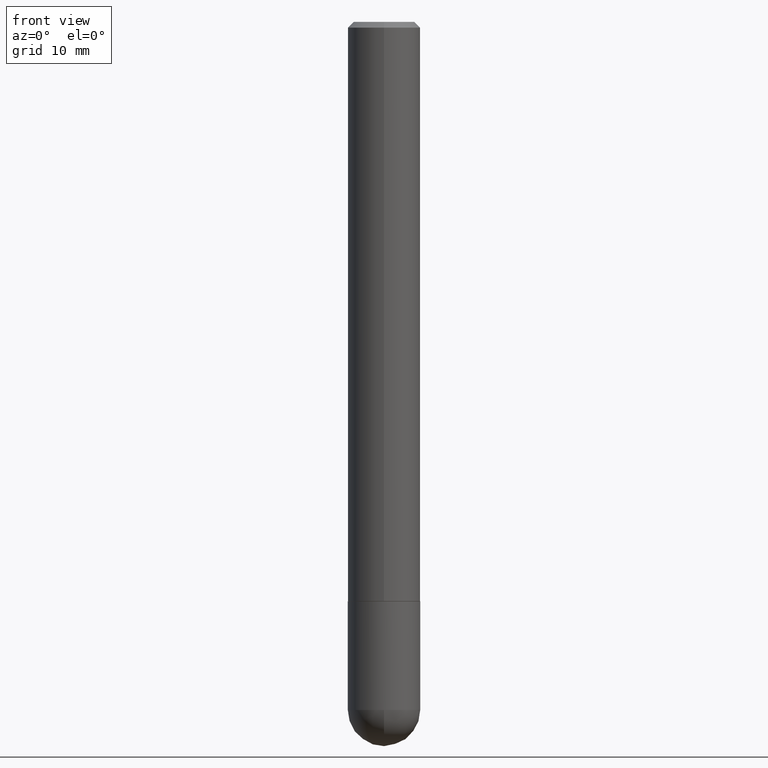
[diagram: clean part render]
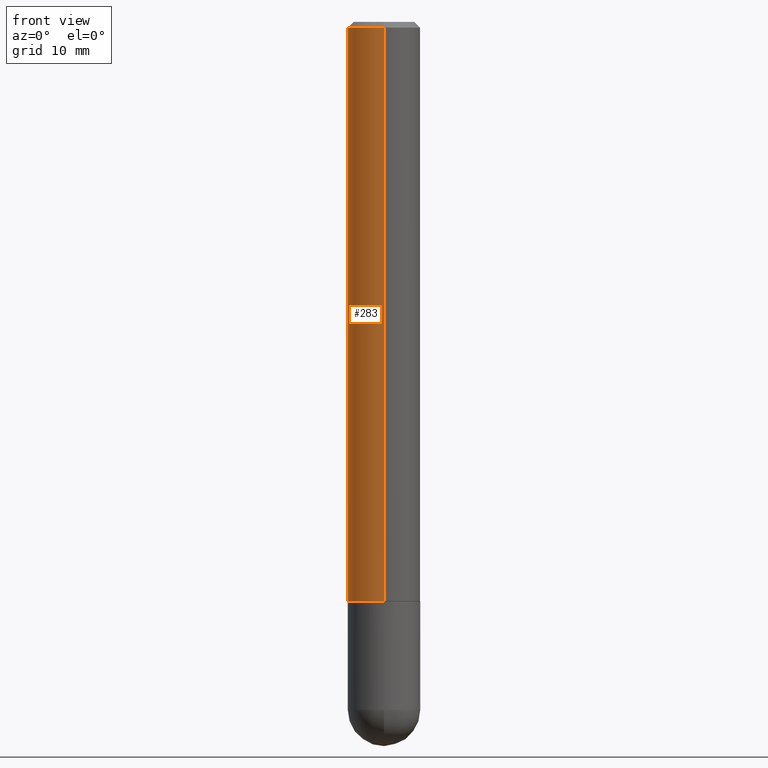
[diagram: same view with one face highlighted and labeled with its STEP entity id]
A machine part, front view. The second image highlights one B-rep face of the part: STEP entity #283.
In plain terms, the highlighted cylindrical surface (edge-blend (fillet) strip) has radius 3.175 mm, axis along (-0, 0, 1).
Its self-contained STEP definition (entity closure, byte-faithful):
#6 = CARTESIAN_POINT ( 'NONE',  ( 4.891806665152773460E-29, -6.974724612781594373E-15, -1.998999999999999666 ) ) ;
#10 = ORIENTED_EDGE ( 'NONE', *, *, #67, .T. ) ;
#11 = DIRECTION ( 'NONE',  ( -6.982962677686265922E-15, -1.000000000000000000, 3.489106859820707875E-15 ) ) ;
#12 = CIRCLE ( 'NONE', #96, 0.1250000000000000278 ) ;
#14 = FACE_OUTER_BOUND ( 'NONE', #263, .T. ) ;
#16 = CARTESIAN_POINT ( 'NONE',  ( 4.894253792048817813E-31, -6.978213719641443063E-17, -0.02000000000000007674 ) ) ;
#20 = DIRECTION ( 'NONE',  ( -2.447126896024399518E-29, 3.489106859820708269E-15, 1.000000000000000000 ) ) ;
#34 = CARTESIAN_POINT ( 'NONE',  ( -8.728703347107842263E-16, -0.1250000000000001388, 4.361383574775889774E-16 ) ) ;
#38 = VERTEX_POINT ( 'NONE', #163 ) ;
#39 = DIRECTION ( 'NONE',  ( -6.982962677686265133E-15, -1.000000000000000000, 4.370956789862812472E-15 ) ) ;
#44 = AXIS2_PLACEMENT_3D ( 'NONE', #108, #69, #11 ) ;
#50 = CARTESIAN_POINT ( 'NONE',  ( 8.881784197001260212E-16, 0.1250000000000001388, -4.361383574775889774E-16 ) ) ;
#67 = EDGE_CURVE ( 'NONE', #38, #290, #220, .T. ) ;
#69 = DIRECTION ( 'NONE',  ( -2.447126896024399518E-29, 3.489106859820708269E-15, 1.000000000000000000 ) ) ;
#77 = DIRECTION ( 'NONE',  ( -2.447126896024399518E-29, 3.489106859820708269E-15, 1.000000000000000000 ) ) ;
#96 = AXIS2_PLACEMENT_3D ( 'NONE', #16, #77, #376 ) ;
#108 = CARTESIAN_POINT ( 'NONE',  ( 0.000000000000000000, 0.000000000000000000, 0.000000000000000000 ) ) ;
#121 = EDGE_CURVE ( 'NONE', #330, #319, #180, .T. ) ;
#129 = ORIENTED_EDGE ( 'NONE', *, *, #383, .F. ) ;
#160 = DIRECTION ( 'NONE',  ( -2.447126896024399518E-29, 3.489106859820708269E-15, 1.000000000000000000 ) ) ;
#163 = CARTESIAN_POINT ( 'NONE',  ( -8.728703347107360072E-16, -0.1250000000000072164, -1.998999999999999000 ) ) ;
#180 = LINE ( 'NONE', #50, #249 ) ;
#220 = LINE ( 'NONE', #34, #399 ) ;
#249 = VECTOR ( 'NONE', #20, 39.37007874015748143 ) ;
#252 = ORIENTED_EDGE ( 'NONE', *, *, #121, .F. ) ;
#263 = EDGE_LOOP ( 'NONE', ( #252, #281, #10, #129 ) ) ;
#269 = DIRECTION ( 'NONE',  ( -2.447126896024399518E-29, 3.489106859820708269E-15, 1.000000000000000000 ) ) ;
#281 = ORIENTED_EDGE ( 'NONE', *, *, #305, .T. ) ;
#283 = ADVANCED_FACE ( 'NONE', ( #14 ), #359, .T. ) ;
#290 = VERTEX_POINT ( 'NONE', #292 ) ;
#292 = CARTESIAN_POINT ( 'NONE',  ( -8.575622497214411495E-16, -0.1250000000000001110, -0.01999999999999964306 ) ) ;
#294 = CARTESIAN_POINT ( 'NONE',  ( 8.881784197001510675E-16, 0.1249999999999932693, -1.999000000000000110 ) ) ;
#305 = EDGE_CURVE ( 'NONE', #330, #38, #308, .T. ) ;
#308 = CIRCLE ( 'NONE', #391, 0.1250000000000002498 ) ;
#319 = VERTEX_POINT ( 'NONE', #362 ) ;
#330 = VERTEX_POINT ( 'NONE', #294 ) ;
#359 = CYLINDRICAL_SURFACE ( 'NONE', #44, 0.1250000000000001388 ) ;
#362 = CARTESIAN_POINT ( 'NONE',  ( 8.728703347107839305E-16, 0.1249999999999999584, -0.02000000000000051389 ) ) ;
#376 = DIRECTION ( 'NONE',  ( -6.982962677686265922E-15, -1.000000000000000000, 3.483106191921934765E-15 ) ) ;
#383 = EDGE_CURVE ( 'NONE', #319, #290, #12, .T. ) ;
#391 = AXIS2_PLACEMENT_3D ( 'NONE', #6, #269, #39 ) ;
#399 = VECTOR ( 'NONE', #160, 39.37007874015748143 ) ;